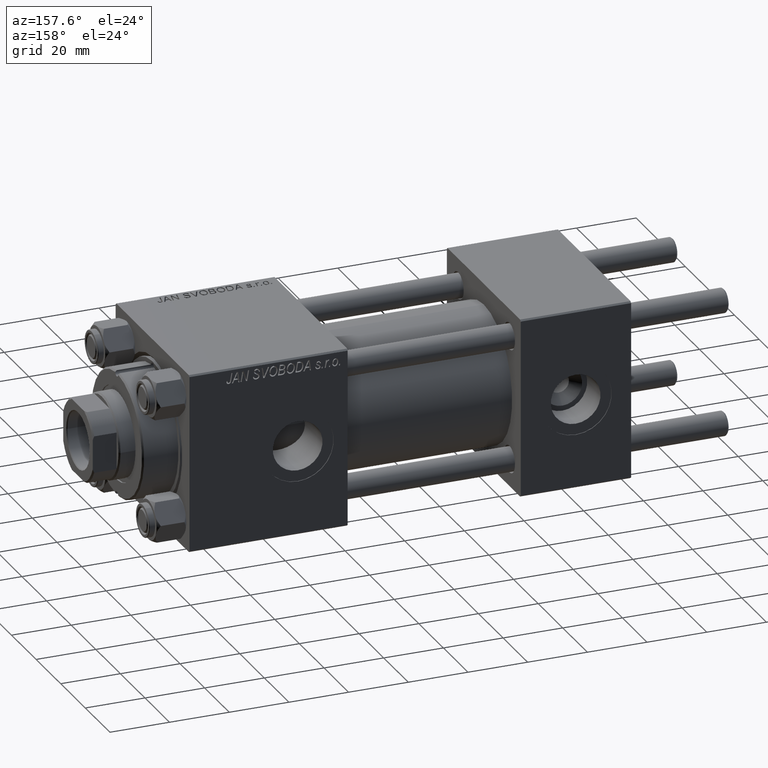
[diagram: clean part render]
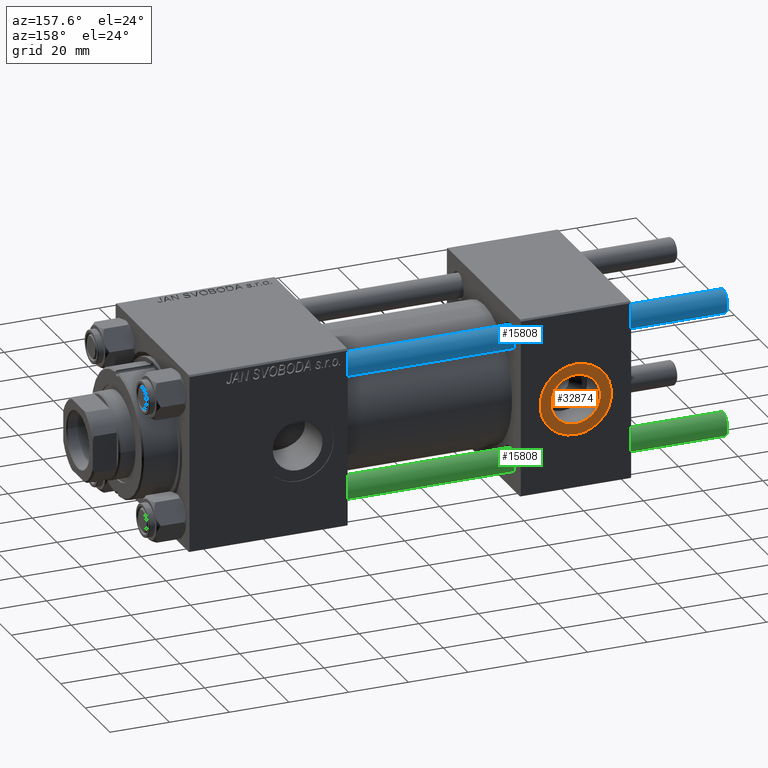
[diagram: same view with three faces highlighted in distinct colors, each labeled with its STEP entity id]
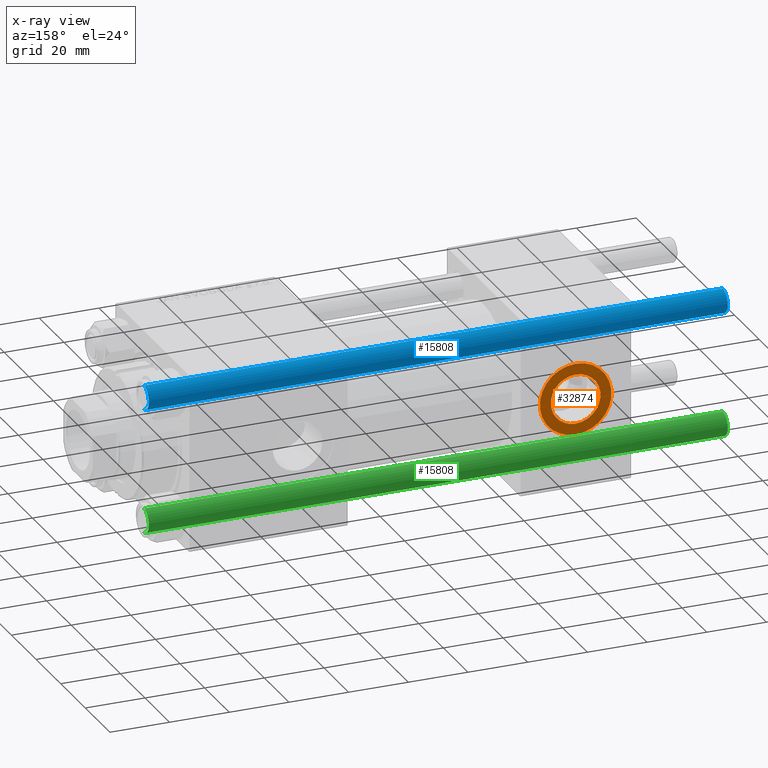
[diagram: x-ray of the same camera — body ghosted, the three highlighted faces saturated]
A machine part, auxiliary view with three faces highlighted in distinct colors.
The next image is the same camera in x-ray (body ghosted, the three faces saturated) — at least one of them is partly hidden behind the body in this view.
Their STEP definitions:

[orange] entity #32874 — the highlighted planar face has unit normal (0, 1, 0).
#4116 = DIRECTION ( 'NONE',  ( 0.000000000000000000, 0.000000000000000000, 1.000000000000000000 ) ) ;
#4632 = AXIS2_PLACEMENT_3D ( 'NONE', #23247, #35406, #51443 ) ;
#5277 = CARTESIAN_POINT ( 'NONE',  ( 18.50000000000000000, 29.79999999999999361, 0.000000000000000000 ) ) ;
#5297 = VERTEX_POINT ( 'NONE', #5655 ) ;
#5655 = CARTESIAN_POINT ( 'NONE',  ( 18.50000000000000000, 29.79999999999999361, 8.330000000000001847 ) ) ;
#6918 = CARTESIAN_POINT ( 'NONE',  ( 18.50000000000000000, 29.79999999999999361, 0.000000000000000000 ) ) ;
#7872 = CARTESIAN_POINT ( 'NONE',  ( 18.50000000000000000, 29.79999999999999361, -12.00000000000000178 ) ) ;
#10737 = ORIENTED_EDGE ( 'NONE', *, *, #36688, .T. ) ;
#15000 = CIRCLE ( 'NONE', #39441, 12.00000000000000178 ) ;
#15305 = ORIENTED_EDGE ( 'NONE', *, *, #20013, .F. ) ;
#15544 = ORIENTED_EDGE ( 'NONE', *, *, #31061, .T. ) ;
#15673 = CARTESIAN_POINT ( 'NONE',  ( 18.50000000000000000, 29.79999999999999361, 12.00000000000000178 ) ) ;
#16073 = PLANE ( 'NONE',  #41223 ) ;
#19683 = CARTESIAN_POINT ( 'NONE',  ( 18.50000000000000000, 29.79999999999999361, 0.000000000000000000 ) ) ;
#20013 = EDGE_CURVE ( 'NONE', #40059, #5297, #21479, .T. ) ;
#21479 = CIRCLE ( 'NONE', #4632, 8.330000000000001847 ) ;
#23209 = CARTESIAN_POINT ( 'NONE',  ( 18.50000000000000000, 29.79999999999999361, -8.330000000000001847 ) ) ;
#23247 = CARTESIAN_POINT ( 'NONE',  ( 18.50000000000000000, 29.79999999999999361, 0.000000000000000000 ) ) ;
#23478 = AXIS2_PLACEMENT_3D ( 'NONE', #19683, #44455, #4116 ) ;
#25173 = CIRCLE ( 'NONE', #23478, 8.330000000000001847 ) ;
#30934 = DIRECTION ( 'NONE',  ( 0.000000000000000000, 1.000000000000000000, 0.000000000000000000 ) ) ;
#31061 = EDGE_CURVE ( 'NONE', #34642, #33435, #15000, .T. ) ;
#32112 = EDGE_CURVE ( 'NONE', #5297, #40059, #25173, .T. ) ;
#32176 = CARTESIAN_POINT ( 'NONE',  ( 18.50000000000000000, 29.79999999999999361, 0.000000000000000000 ) ) ;
#32874 = ADVANCED_FACE ( 'NONE', ( #36136, #52174 ), #16073, .T. ) ;
#33435 = VERTEX_POINT ( 'NONE', #15673 ) ;
#34642 = VERTEX_POINT ( 'NONE', #7872 ) ;
#34889 = DIRECTION ( 'NONE',  ( 0.000000000000000000, 0.000000000000000000, 1.000000000000000000 ) ) ;
#35374 = EDGE_LOOP ( 'NONE', ( #38021, #15305 ) ) ;
#35406 = DIRECTION ( 'NONE',  ( 0.000000000000000000, 1.000000000000000000, 0.000000000000000000 ) ) ;
#36136 = FACE_BOUND ( 'NONE', #35374, .T. ) ;
#36688 = EDGE_CURVE ( 'NONE', #33435, #34642, #42024, .T. ) ;
#38021 = ORIENTED_EDGE ( 'NONE', *, *, #32112, .F. ) ;
#39441 = AXIS2_PLACEMENT_3D ( 'NONE', #6918, #30934, #34889 ) ;
#40059 = VERTEX_POINT ( 'NONE', #23209 ) ;
#41223 = AXIS2_PLACEMENT_3D ( 'NONE', #32176, #48239, #42387 ) ;
#42024 = CIRCLE ( 'NONE', #52096, 12.00000000000000178 ) ;
#42237 = EDGE_LOOP ( 'NONE', ( #10737, #15544 ) ) ;
#42387 = DIRECTION ( 'NONE',  ( 0.000000000000000000, -0.000000000000000000, 1.000000000000000000 ) ) ;
#44455 = DIRECTION ( 'NONE',  ( 0.000000000000000000, 1.000000000000000000, 0.000000000000000000 ) ) ;
#45359 = DIRECTION ( 'NONE',  ( 0.000000000000000000, 0.000000000000000000, 1.000000000000000000 ) ) ;
#48239 = DIRECTION ( 'NONE',  ( 0.000000000000000000, 1.000000000000000000, 0.000000000000000000 ) ) ;
#49054 = DIRECTION ( 'NONE',  ( 0.000000000000000000, 1.000000000000000000, 0.000000000000000000 ) ) ;
#51443 = DIRECTION ( 'NONE',  ( 0.000000000000000000, 0.000000000000000000, 1.000000000000000000 ) ) ;
#52096 = AXIS2_PLACEMENT_3D ( 'NONE', #5277, #49054, #45359 ) ;
#52174 = FACE_OUTER_BOUND ( 'NONE', #42237, .T. ) ;

[blue] entity #15808 — the highlighted cylindrical surface (edge-blend (fillet) strip) has radius 4 mm, axis along (-1, -0, -0).
#4154 = VECTOR ( 'NONE', #38940, 1000.000000000000000 ) ;
#6864 = FACE_OUTER_BOUND ( 'NONE', #47013, .T. ) ;
#7526 = AXIS2_PLACEMENT_3D ( 'NONE', #21766, #30209, #34175 ) ;
#8394 = LINE ( 'NONE', #40034, #39213 ) ;
#8692 = AXIS2_PLACEMENT_3D ( 'NONE', #35370, #15299, #23210 ) ;
#10837 = ORIENTED_EDGE ( 'NONE', *, *, #49013, .T. ) ;
#11027 = DIRECTION ( 'NONE',  ( -0.000000000000000000, -0.000000000000000000, 1.000000000000000000 ) ) ;
#15194 = CARTESIAN_POINT ( 'NONE',  ( 4.000000000000000000, 4.898587196589412829E-16, 195.0000000000000000 ) ) ;
#15299 = DIRECTION ( 'NONE',  ( -0.000000000000000000, -0.000000000000000000, -1.000000000000000000 ) ) ;
#15483 = CARTESIAN_POINT ( 'NONE',  ( 0.000000000000000000, 0.000000000000000000, 0.5000000000000004441 ) ) ;
#15484 = VERTEX_POINT ( 'NONE', #23276 ) ;
#15557 = ORIENTED_EDGE ( 'NONE', *, *, #24405, .F. ) ;
#15808 = ADVANCED_FACE ( 'NONE', ( #6864 ), #51409, .T. ) ;
#21766 = CARTESIAN_POINT ( 'NONE',  ( 0.000000000000000000, 0.000000000000000000, 194.5000000000000568 ) ) ;
#23147 = DIRECTION ( 'NONE',  ( 1.000000000000000000, 0.000000000000000000, 0.000000000000000000 ) ) ;
#23210 = DIRECTION ( 'NONE',  ( -1.000000000000000000, 0.000000000000000000, 0.000000000000000000 ) ) ;
#23276 = CARTESIAN_POINT ( 'NONE',  ( 4.000000000000000000, 4.898587196589412829E-16, 0.5000000000000004441 ) ) ;
#23517 = CIRCLE ( 'NONE', #7526, 4.000000000000000000 ) ;
#24405 = EDGE_CURVE ( 'NONE', #31667, #46091, #8394, .T. ) ;
#25055 = AXIS2_PLACEMENT_3D ( 'NONE', #15483, #11027, #23147 ) ;
#27919 = DIRECTION ( 'NONE',  ( -0.000000000000000000, -0.000000000000000000, -1.000000000000000000 ) ) ;
#29350 = CARTESIAN_POINT ( 'NONE',  ( 4.000000000000000000, 4.898587196589412829E-16, 194.5000000000000568 ) ) ;
#30209 = DIRECTION ( 'NONE',  ( 0.000000000000000000, 0.000000000000000000, -1.000000000000000000 ) ) ;
#31667 = VERTEX_POINT ( 'NONE', #51391 ) ;
#33227 = EDGE_CURVE ( 'NONE', #31667, #36410, #23517, .T. ) ;
#34175 = DIRECTION ( 'NONE',  ( 1.000000000000000000, 0.000000000000000000, 0.000000000000000000 ) ) ;
#34904 = EDGE_CURVE ( 'NONE', #36410, #15484, #51303, .T. ) ;
#35370 = CARTESIAN_POINT ( 'NONE',  ( 0.000000000000000000, 0.000000000000000000, 195.0000000000000000 ) ) ;
#36410 = VERTEX_POINT ( 'NONE', #29350 ) ;
#38940 = DIRECTION ( 'NONE',  ( -0.000000000000000000, -0.000000000000000000, -1.000000000000000000 ) ) ;
#39213 = VECTOR ( 'NONE', #27919, 1000.000000000000000 ) ;
#40034 = CARTESIAN_POINT ( 'NONE',  ( -4.000000000000000000, 0.000000000000000000, 195.0000000000000000 ) ) ;
#40989 = ORIENTED_EDGE ( 'NONE', *, *, #33227, .T. ) ;
#42261 = CARTESIAN_POINT ( 'NONE',  ( -4.000000000000000000, 0.000000000000000000, 0.5000000000000004441 ) ) ;
#46091 = VERTEX_POINT ( 'NONE', #42261 ) ;
#46358 = ORIENTED_EDGE ( 'NONE', *, *, #34904, .T. ) ;
#47013 = EDGE_LOOP ( 'NONE', ( #40989, #46358, #10837, #15557 ) ) ;
#48612 = CIRCLE ( 'NONE', #25055, 4.000000000000000000 ) ;
#49013 = EDGE_CURVE ( 'NONE', #15484, #46091, #48612, .T. ) ;
#51303 = LINE ( 'NONE', #15194, #4154 ) ;
#51391 = CARTESIAN_POINT ( 'NONE',  ( -4.000000000000000000, 0.000000000000000000, 194.5000000000000568 ) ) ;
#51409 = CYLINDRICAL_SURFACE ( 'NONE', #8692, 4.000000000000000000 ) ;

[green] entity #15808 — the highlighted cylindrical surface (edge-blend (fillet) strip) has radius 4 mm, axis along (1, 0, -0).
#4154 = VECTOR ( 'NONE', #38940, 1000.000000000000000 ) ;
#6864 = FACE_OUTER_BOUND ( 'NONE', #47013, .T. ) ;
#7526 = AXIS2_PLACEMENT_3D ( 'NONE', #21766, #30209, #34175 ) ;
#8394 = LINE ( 'NONE', #40034, #39213 ) ;
#8692 = AXIS2_PLACEMENT_3D ( 'NONE', #35370, #15299, #23210 ) ;
#10837 = ORIENTED_EDGE ( 'NONE', *, *, #49013, .T. ) ;
#11027 = DIRECTION ( 'NONE',  ( -0.000000000000000000, -0.000000000000000000, 1.000000000000000000 ) ) ;
#15194 = CARTESIAN_POINT ( 'NONE',  ( 4.000000000000000000, 4.898587196589412829E-16, 195.0000000000000000 ) ) ;
#15299 = DIRECTION ( 'NONE',  ( -0.000000000000000000, -0.000000000000000000, -1.000000000000000000 ) ) ;
#15483 = CARTESIAN_POINT ( 'NONE',  ( 0.000000000000000000, 0.000000000000000000, 0.5000000000000004441 ) ) ;
#15484 = VERTEX_POINT ( 'NONE', #23276 ) ;
#15557 = ORIENTED_EDGE ( 'NONE', *, *, #24405, .F. ) ;
#15808 = ADVANCED_FACE ( 'NONE', ( #6864 ), #51409, .T. ) ;
#21766 = CARTESIAN_POINT ( 'NONE',  ( 0.000000000000000000, 0.000000000000000000, 194.5000000000000568 ) ) ;
#23147 = DIRECTION ( 'NONE',  ( 1.000000000000000000, 0.000000000000000000, 0.000000000000000000 ) ) ;
#23210 = DIRECTION ( 'NONE',  ( -1.000000000000000000, 0.000000000000000000, 0.000000000000000000 ) ) ;
#23276 = CARTESIAN_POINT ( 'NONE',  ( 4.000000000000000000, 4.898587196589412829E-16, 0.5000000000000004441 ) ) ;
#23517 = CIRCLE ( 'NONE', #7526, 4.000000000000000000 ) ;
#24405 = EDGE_CURVE ( 'NONE', #31667, #46091, #8394, .T. ) ;
#25055 = AXIS2_PLACEMENT_3D ( 'NONE', #15483, #11027, #23147 ) ;
#27919 = DIRECTION ( 'NONE',  ( -0.000000000000000000, -0.000000000000000000, -1.000000000000000000 ) ) ;
#29350 = CARTESIAN_POINT ( 'NONE',  ( 4.000000000000000000, 4.898587196589412829E-16, 194.5000000000000568 ) ) ;
#30209 = DIRECTION ( 'NONE',  ( 0.000000000000000000, 0.000000000000000000, -1.000000000000000000 ) ) ;
#31667 = VERTEX_POINT ( 'NONE', #51391 ) ;
#33227 = EDGE_CURVE ( 'NONE', #31667, #36410, #23517, .T. ) ;
#34175 = DIRECTION ( 'NONE',  ( 1.000000000000000000, 0.000000000000000000, 0.000000000000000000 ) ) ;
#34904 = EDGE_CURVE ( 'NONE', #36410, #15484, #51303, .T. ) ;
#35370 = CARTESIAN_POINT ( 'NONE',  ( 0.000000000000000000, 0.000000000000000000, 195.0000000000000000 ) ) ;
#36410 = VERTEX_POINT ( 'NONE', #29350 ) ;
#38940 = DIRECTION ( 'NONE',  ( -0.000000000000000000, -0.000000000000000000, -1.000000000000000000 ) ) ;
#39213 = VECTOR ( 'NONE', #27919, 1000.000000000000000 ) ;
#40034 = CARTESIAN_POINT ( 'NONE',  ( -4.000000000000000000, 0.000000000000000000, 195.0000000000000000 ) ) ;
#40989 = ORIENTED_EDGE ( 'NONE', *, *, #33227, .T. ) ;
#42261 = CARTESIAN_POINT ( 'NONE',  ( -4.000000000000000000, 0.000000000000000000, 0.5000000000000004441 ) ) ;
#46091 = VERTEX_POINT ( 'NONE', #42261 ) ;
#46358 = ORIENTED_EDGE ( 'NONE', *, *, #34904, .T. ) ;
#47013 = EDGE_LOOP ( 'NONE', ( #40989, #46358, #10837, #15557 ) ) ;
#48612 = CIRCLE ( 'NONE', #25055, 4.000000000000000000 ) ;
#49013 = EDGE_CURVE ( 'NONE', #15484, #46091, #48612, .T. ) ;
#51303 = LINE ( 'NONE', #15194, #4154 ) ;
#51391 = CARTESIAN_POINT ( 'NONE',  ( -4.000000000000000000, 0.000000000000000000, 194.5000000000000568 ) ) ;
#51409 = CYLINDRICAL_SURFACE ( 'NONE', #8692, 4.000000000000000000 ) ;